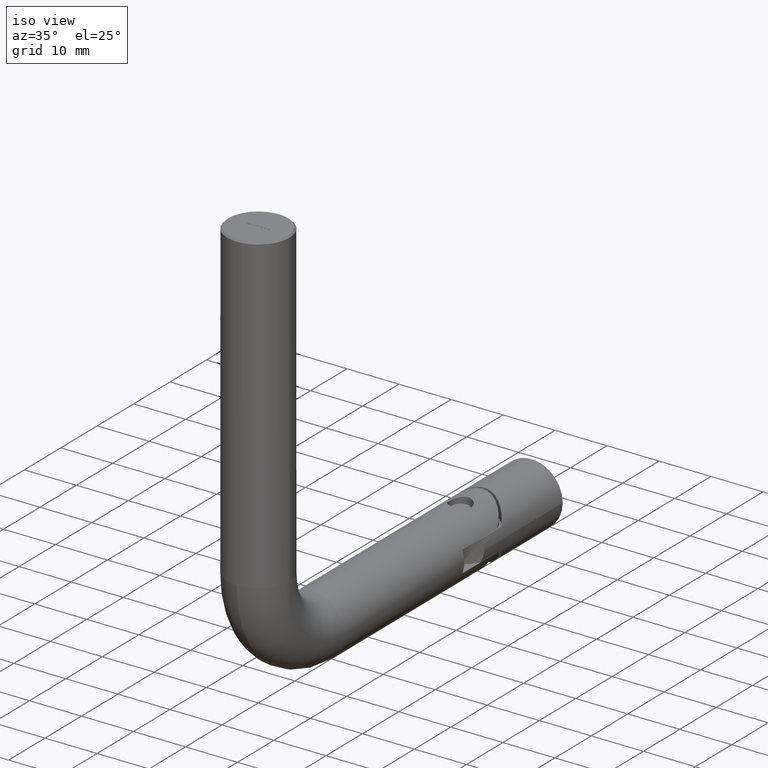
[diagram: clean part render]
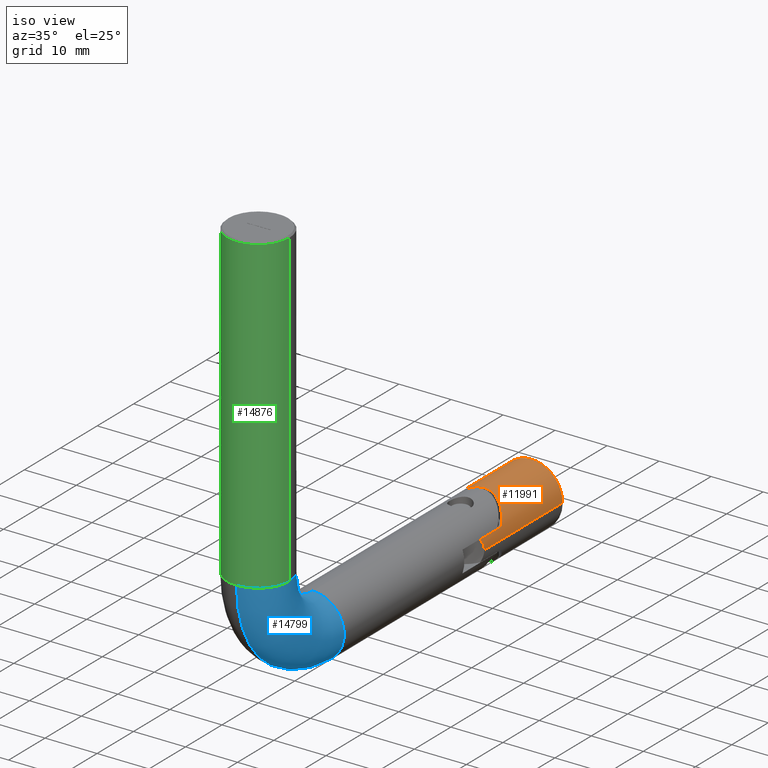
[diagram: same view with three faces highlighted in distinct colors, each labeled with its STEP entity id]
A machine part, iso view with three faces highlighted in distinct colors.
Their STEP definitions:

[orange] entity #11991 — the highlighted cylindrical surface (partial cylindrical patch) has radius 6 mm, axis along (0, -1, -0).
#56 = CARTESIAN_POINT ( 'NONE',  ( -4.581546204605388972, -1.411438803455867586, -3.885803305584377032 ) ) ;
#236 = CARTESIAN_POINT ( 'NONE',  ( -9.170508023194263639E-30, 12.87000000000002764, -6.000000000000016875 ) ) ;
#654 = CARTESIAN_POINT ( 'NONE',  ( -0.3617856438973633959, -8.650078377880598524, -5.991732771139056446 ) ) ;
#954 = ORIENTED_EDGE ( 'NONE', *, *, #3980, .F. ) ;
#1244 = CARTESIAN_POINT ( 'NONE',  ( -3.963077868403893866, -1.945530811190656850, -4.514436115276507344 ) ) ;
#1295 = CARTESIAN_POINT ( 'NONE',  ( -3.742934206814902076, -2.130908857969868286, -4.697949625296735654 ) ) ;
#1400 = CARTESIAN_POINT ( 'NONE',  ( -3.752979125615180767, -2.122581578878858455, 4.690117934618141859 ) ) ;
#1439 = CARTESIAN_POINT ( 'NONE',  ( 7.350550849581413190E-16, -8.629999999999991900, 6.000000000000000888 ) ) ;
#1462 = CARTESIAN_POINT ( 'NONE',  ( -3.289085795271207147, -2.500828911946892497, 5.026328002555670693 ) ) ;
#1593 = DIRECTION ( 'NONE',  ( 6.286235338479925563E-31, -1.000000000000000000, -1.503209982180670017E-46 ) ) ;
#1655 = CARTESIAN_POINT ( 'NONE',  ( 7.347880794884302160E-16, 12.87000000000002764, 6.000000000000000888 ) ) ;
#1815 = LINE ( 'NONE', #7816, #16562 ) ;
#1847 = CARTESIAN_POINT ( 'NONE',  ( -1.224466217722105066, -8.909489378976346075, 5.876187845408427535 ) ) ;
#1891 = CARTESIAN_POINT ( 'NONE',  ( -1.781184815116626976E-22, -8.629999999999993676, -6.000000000000000888 ) ) ;
#2585 = DIRECTION ( 'NONE',  ( 1.528418003865706344E-30, 0.000000000000000000, 1.000000000000000000 ) ) ;
#2608 = CARTESIAN_POINT ( 'NONE',  ( -5.882534994426070085, -0.2382795446612990531, -1.193528894263008899 ) ) ;
#2647 = DIRECTION ( 'NONE',  ( -1.528418003865706344E-30, 0.000000000000000000, -1.000000000000000000 ) ) ;
#2658 = CARTESIAN_POINT ( 'NONE',  ( -2.280411108807488318, -3.253266450332294557, 5.557713951213481884 ) ) ;
#2706 = DIRECTION ( 'NONE',  ( -6.286235338479925563E-31, 1.000000000000000000, -2.465190328815640818E-32 ) ) ;
#2758 = CARTESIAN_POINT ( 'NONE',  ( -4.384712526039704628, -1.583816360269787005, -4.106143652374580455 ) ) ;
#2768 = EDGE_CURVE ( 'NONE', #16377, #4177, #5489, .T. ) ;
#2814 = CARTESIAN_POINT ( 'NONE',  ( -4.946369160099275852, -1.088395250008953541, -3.409320326200408591 ) ) ;
#3022 = EDGE_CURVE ( 'NONE', #6144, #4657, #5279, .T. ) ;
#3386 = EDGE_CURVE ( 'NONE', #6085, #4028, #12502, .T. ) ;
#3427 = ORIENTED_EDGE ( 'NONE', *, *, #3022, .T. ) ;
#3606 = EDGE_CURVE ( 'NONE', #16377, #4657, #12597, .T. ) ;
#3635 = VERTEX_POINT ( 'NONE', #1655 ) ;
#3977 = ORIENTED_EDGE ( 'NONE', *, *, #3606, .F. ) ;
#3980 = EDGE_CURVE ( 'NONE', #13682, #3635, #4355, .T. ) ;
#4018 = CARTESIAN_POINT ( 'NONE',  ( -2.543575947902753764, -3.067485441664189683, 5.441644024836812754 ) ) ;
#4028 = VERTEX_POINT ( 'NONE', #1439 ) ;
#4075 = LINE ( 'NONE', #14901, #6977 ) ;
#4133 = CYLINDRICAL_SURFACE ( 'NONE', #17045, 6.000000000000016875 ) ;
#4177 = VERTEX_POINT ( 'NONE', #7551 ) ;
#4178 = CARTESIAN_POINT ( 'NONE',  ( -5.712651829901445488, -0.3943036353007446371, -1.841811353009712660 ) ) ;
#4317 = CARTESIAN_POINT ( 'NONE',  ( -2.000000000000001776, -13.13000000000000966, -5.656854249492395681 ) ) ;
#4355 = CIRCLE ( 'NONE', #12137, 6.000000000000016875 ) ;
#4486 = CARTESIAN_POINT ( 'NONE',  ( -1.392130197901999100, -8.974932780066394500, -5.846097255920565061 ) ) ;
#4657 = VERTEX_POINT ( 'NONE', #6232 ) ;
#4726 = CARTESIAN_POINT ( 'NONE',  ( -0.1821394757101623685, -8.629999999999995453, -6.000000000000000888 ) ) ;
#4744 = CARTESIAN_POINT ( 'NONE',  ( -2.150426531879441036E-30, 12.87000000000002764, -6.000000000000000888 ) ) ;
#4925 = CARTESIAN_POINT ( 'NONE',  ( -2.000000000000112799, -9.331562118716385967, 5.656854249492416997 ) ) ;
#5279 = B_SPLINE_CURVE_WITH_KNOTS ( 'NONE', 3,
 ( #1891, #4726, #654, #12677, #15383, #4486, #7282, #10068 ),
 .UNSPECIFIED., .F., .F.,
 ( 4, 2, 2, 4 ),
 ( 0.002178732642888937462, 0.002725283110957638262, 0.003271833579026339062, 0.004364934515163739794 ),
 .UNSPECIFIED. ) ;
#5419 = CARTESIAN_POINT ( 'NONE',  ( -5.555008041940381780, -0.5385159396421987932, 2.291497636623339051 ) ) ;
#5489 = B_SPLINE_CURVE_WITH_KNOTS ( 'NONE', 3,
 ( #8122, #17415, #10773, #10884, #10835, #1295, #1244, #2758, #56, #2814, #6816, #16049, #12203, #4178, #10663, #12255, #2608, #6606, #6761, #10720, #12042, #13497, #13446, #5419, #7947, #16165, #12148, #9405, #14848, #6709, #1400, #1462, #16210, #4018, #2658, #9465 ),
 .UNSPECIFIED., .F., .F.,
 ( 4, 2, 2, 2, 2, 2, 2, 2, 2, 2, 2, 2, 2, 2, 2, 2, 2, 4 ),
 ( 1.301042606982605321E-18, 0.001016921674962623177, 0.002033843349925245052, 0.003050765024887866928, 0.004067686699850489238, 0.005084608374813110246, 0.006101530049775732989, 0.006609990887257043493, 0.007118451724738353997, 0.008135373399700976740, 0.009152295074663597749, 0.01016921674962622049, 0.01118613842458884323, 0.01220306009955146424, 0.01321998177451408525, 0.01423690344947670799, 0.01525382512443933074, 0.01627074679940195001 ),
 .UNSPECIFIED. ) ;
#5700 = ORIENTED_EDGE ( 'NONE', *, *, #3386, .T. ) ;
#5979 = CARTESIAN_POINT ( 'NONE',  ( -0.7184394698673928215, -8.725440467147473456, 5.959475362595127557 ) ) ;
#6085 = VERTEX_POINT ( 'NONE', #4925 ) ;
#6144 = VERTEX_POINT ( 'NONE', #13439 ) ;
#6199 = ORIENTED_EDGE ( 'NONE', *, *, #2768, .T. ) ;
#6232 = CARTESIAN_POINT ( 'NONE',  ( -2.000000000000001776, -9.331562118716426824, -5.656854249492389464 ) ) ;
#6322 = LINE ( 'NONE', #236, #8190 ) ;
#6363 = CARTESIAN_POINT ( 'NONE',  ( 0.000000000000000000, 12.87000000000002764, 3.081487911019577365E-30 ) ) ;
#6606 = CARTESIAN_POINT ( 'NONE',  ( -5.969531893648558629, -0.1581532231148576328, -0.6925357023754528107 ) ) ;
#6709 = CARTESIAN_POINT ( 'NONE',  ( -3.975293530975994472, -1.935158645607629957, 4.503502654860914056 ) ) ;
#6761 = CARTESIAN_POINT ( 'NONE',  ( -5.999248220788542696, -0.1306939498043536152, -0.3547117963094750803 ) ) ;
#6816 = CARTESIAN_POINT ( 'NONE',  ( -5.114414597132688201, -0.9376357314501296836, -3.153217728018648636 ) ) ;
#6977 = VECTOR ( 'NONE', #2706, 1000.000000000000000 ) ;
#7122 = CARTESIAN_POINT ( 'NONE',  ( -1.852023483184906061, -9.239121921507676305, 5.709171848740540511 ) ) ;
#7179 = DIRECTION ( 'NONE',  ( 6.286235338479925563E-31, -1.000000000000000000, 2.465190328815640818E-32 ) ) ;
#7190 = CARTESIAN_POINT ( 'NONE',  ( 7.350550849581413190E-16, -8.629999999999991900, 6.000000000000000888 ) ) ;
#7282 = CARTESIAN_POINT ( 'NONE',  ( -1.704452939911144549, -9.146935333959648418, -5.761345914666666346 ) ) ;
#7551 = CARTESIAN_POINT ( 'NONE',  ( -2.000000000000001776, -3.428437881283580069, 5.656854249492389464 ) ) ;
#7816 = CARTESIAN_POINT ( 'NONE',  ( 7.347880794884249898E-16, 12.87000000000002764, 6.000000000000016875 ) ) ;
#7947 = CARTESIAN_POINT ( 'NONE',  ( -5.423960505446898672, -0.6579652600255414541, 2.584577807946759620 ) ) ;
#8107 = EDGE_CURVE ( 'NONE', #13682, #6144, #6322, .T. ) ;
#8122 = CARTESIAN_POINT ( 'NONE',  ( -2.000000000000001776, -3.428437881283580069, -5.656854249492389464 ) ) ;
#8190 = VECTOR ( 'NONE', #1593, 1000.000000000000000 ) ;
#9337 = DIRECTION ( 'NONE',  ( -6.286235338479925563E-31, 1.000000000000000000, 1.503209982180670017E-46 ) ) ;
#9405 = CARTESIAN_POINT ( 'NONE',  ( -4.587803455469829927, -1.405943696212462735, 3.878477351499727277 ) ) ;
#9465 = CARTESIAN_POINT ( 'NONE',  ( -2.000000000000001776, -3.428437881283580069, 5.656854249492389464 ) ) ;
#9908 = CARTESIAN_POINT ( 'NONE',  ( -0.1806006130240605523, -8.629999999999993676, 6.000000000000001776 ) ) ;
#10068 = CARTESIAN_POINT ( 'NONE',  ( -2.000000000000001776, -9.331562118716426824, -5.656854249492389464 ) ) ;
#10519 = CARTESIAN_POINT ( 'NONE',  ( -2.000000000000001776, -3.428437881283580069, -5.656854249492389464 ) ) ;
#10663 = CARTESIAN_POINT ( 'NONE',  ( -5.761247172812375084, -0.3497383057324661704, -1.684051163816296270 ) ) ;
#10720 = CARTESIAN_POINT ( 'NONE',  ( -6.000723816151055878, -0.1293318622469462331, 0.3288059539501582140 ) ) ;
#10773 = CARTESIAN_POINT ( 'NONE',  ( -2.542605740416459259, -3.068139149413771083, -5.442013910058804527 ) ) ;
#10835 = CARTESIAN_POINT ( 'NONE',  ( -3.283542601463433019, -2.505207078728183934, -5.029774860045494123 ) ) ;
#10884 = CARTESIAN_POINT ( 'NONE',  ( -3.044363521539125816, -2.694246194308094644, -5.178050800947596066 ) ) ;
#11213 = CARTESIAN_POINT ( 'NONE',  ( -0.8897784946480832291, -8.779141268229739836, 5.936092598951787203 ) ) ;
#11274 = CARTESIAN_POINT ( 'NONE',  ( -0.3649137017914586001, -8.650578893111360301, 5.991522332386529648 ) ) ;
#11676 = ORIENTED_EDGE ( 'NONE', *, *, #16151, .F. ) ;
#11743 = FACE_OUTER_BOUND ( 'NONE', #14686, .T. ) ;
#11792 = DIRECTION ( 'NONE',  ( 6.286235338479925563E-31, -1.000000000000000000, -1.503209982180670017E-46 ) ) ;
#11845 = CARTESIAN_POINT ( 'NONE',  ( 0.000000000000000000, 12.87000000000002764, 3.081487911019577365E-30 ) ) ;
#11937 = EDGE_CURVE ( 'NONE', #3635, #4028, #1815, .T. ) ;
#11991 = ADVANCED_FACE ( 'NONE', ( #11743 ), #4133, .T. ) ;
#12042 = CARTESIAN_POINT ( 'NONE',  ( -5.971326675247828675, -0.1564961354008681804, 0.6763518082564600187 ) ) ;
#12137 = AXIS2_PLACEMENT_3D ( 'NONE', #11845, #9337, #2585 ) ;
#12148 = CARTESIAN_POINT ( 'NONE',  ( -4.952794118636134613, -1.082658898110003376, 3.400052577611195392 ) ) ;
#12203 = CARTESIAN_POINT ( 'NONE',  ( -5.549716450024921421, -0.5433403604385905750, -2.303755039783948799 ) ) ;
#12207 = ORIENTED_EDGE ( 'NONE', *, *, #8107, .T. ) ;
#12255 = CARTESIAN_POINT ( 'NONE',  ( -5.846147438544883279, -0.2717645658995566649, -1.360351952762476779 ) ) ;
#12502 = B_SPLINE_CURVE_WITH_KNOTS ( 'NONE', 3,
 ( #15159, #7122, #13876, #15341, #1847, #11213, #5979, #11274, #9908, #7190 ),
 .UNSPECIFIED., .F., .F.,
 ( 4, 2, 2, 2, 4 ),
 ( 0.02086813287824276775, 0.02141368712936816271, 0.02195924138049355767, 0.02250479563161894916, 0.02305034988274434413 ),
 .UNSPECIFIED. ) ;
#12597 = LINE ( 'NONE', #4317, #16807 ) ;
#12677 = CARTESIAN_POINT ( 'NONE',  ( -0.7167165501273530248, -8.724915950807949017, -5.959703670455898994 ) ) ;
#13199 = DIRECTION ( 'NONE',  ( 6.286235338479925563E-31, -1.000000000000000000, -1.503209982180670017E-46 ) ) ;
#13439 = CARTESIAN_POINT ( 'NONE',  ( -1.781184815116626976E-22, -8.629999999999993676, -6.000000000000000888 ) ) ;
#13446 = CARTESIAN_POINT ( 'NONE',  ( -5.772953724843405077, -0.3391289616815184593, 1.667957150375651398 ) ) ;
#13497 = CARTESIAN_POINT ( 'NONE',  ( -5.857618955413417261, -0.2612316850687557146, 1.342569999754022803 ) ) ;
#13682 = VERTEX_POINT ( 'NONE', #4744 ) ;
#13876 = CARTESIAN_POINT ( 'NONE',  ( -1.700415533878682606, -9.150538201541113636, 5.756288854612837902 ) ) ;
#14298 = ORIENTED_EDGE ( 'NONE', *, *, #11937, .F. ) ;
#14686 = EDGE_LOOP ( 'NONE', ( #14298, #954, #12207, #3427, #3977, #6199, #11676, #5700 ) ) ;
#14848 = CARTESIAN_POINT ( 'NONE',  ( -4.392014078432160851, -1.577439822165445538, 4.098134594496933403 ) ) ;
#14901 = CARTESIAN_POINT ( 'NONE',  ( -2.000000000000001776, -13.13000000000000966, 5.656854249492386799 ) ) ;
#15159 = CARTESIAN_POINT ( 'NONE',  ( -2.000000000000112799, -9.331562118716385967, 5.656854249492416997 ) ) ;
#15341 = CARTESIAN_POINT ( 'NONE',  ( -1.387142725091126128, -8.985941697389247196, 5.839701141824178876 ) ) ;
#15383 = CARTESIAN_POINT ( 'NONE',  ( -0.8916959727603196439, -8.779816166573331415, -5.935789601692529338 ) ) ;
#16049 = CARTESIAN_POINT ( 'NONE',  ( -5.417563057375732960, -0.6637814509404951213, -2.598081836858240568 ) ) ;
#16151 = EDGE_CURVE ( 'NONE', #6085, #4177, #4075, .T. ) ;
#16165 = CARTESIAN_POINT ( 'NONE',  ( -5.123235225486805433, -0.9297025914007953640, 3.138765813868543475 ) ) ;
#16210 = CARTESIAN_POINT ( 'NONE',  ( -3.048047065601210193, -2.691431441535462987, 5.175971153481382814 ) ) ;
#16377 = VERTEX_POINT ( 'NONE', #10519 ) ;
#16562 = VECTOR ( 'NONE', #13199, 1000.000000000000000 ) ;
#16807 = VECTOR ( 'NONE', #7179, 1000.000000000000000 ) ;
#17045 = AXIS2_PLACEMENT_3D ( 'NONE', #6363, #11792, #2647 ) ;
#17415 = CARTESIAN_POINT ( 'NONE',  ( -2.280312844726844368, -3.253327835416824243, -5.557748692812366720 ) ) ;

[blue] entity #14799 — the highlighted toroidal blend (fillet) surface has major radius 15 mm and minor (blend) radius 6 mm.
#271 = ORIENTED_EDGE ( 'NONE', *, *, #2893, .F. ) ;
#405 = CARTESIAN_POINT ( 'NONE',  ( 6.000000000000000888, 0.000000000000000000, -60.00000000000000000 ) ) ;
#436 = CARTESIAN_POINT ( 'NONE',  ( 0.000000000000000000, 14.99999999999999822, -68.99999999999998579 ) ) ;
#669 = ORIENTED_EDGE ( 'NONE', *, *, #9371, .T. ) ;
#989 = CARTESIAN_POINT ( 'NONE',  ( 0.000000000000000000, 15.00000000000000000, -60.00000000000000000 ) ) ;
#1110 = DIRECTION ( 'NONE',  ( 0.000000000000000000, 0.000000000000000000, 1.000000000000000000 ) ) ;
#1464 = ORIENTED_EDGE ( 'NONE', *, *, #15084, .F. ) ;
#1496 = DIRECTION ( 'NONE',  ( 0.000000000000000000, 0.000000000000000000, -1.000000000000000000 ) ) ;
#1737 = DIRECTION ( 'NONE',  ( 1.000000000000000000, 0.000000000000000000, -0.000000000000000000 ) ) ;
#2407 = DIRECTION ( 'NONE',  ( 1.000000000000000000, 0.000000000000000000, 0.000000000000000000 ) ) ;
#2464 = EDGE_CURVE ( 'NONE', #8728, #17156, #10883, .T. ) ;
#2501 = AXIS2_PLACEMENT_3D ( 'NONE', #16491, #4429, #6826 ) ;
#2893 = EDGE_CURVE ( 'NONE', #3015, #15259, #15560, .T. ) ;
#3015 = VERTEX_POINT ( 'NONE', #405 ) ;
#3893 = DIRECTION ( 'NONE',  ( 0.000000000000000000, 0.000000000000000000, -1.000000000000000000 ) ) ;
#3969 = CARTESIAN_POINT ( 'NONE',  ( 0.000000000000000000, -6.000000000000001776, -60.00000000000000000 ) ) ;
#4429 = DIRECTION ( 'NONE',  ( 0.000000000000000000, -1.000000000000000000, -1.608122649676636601E-16 ) ) ;
#5327 = DIRECTION ( 'NONE',  ( 0.000000000000000000, 0.000000000000000000, 1.000000000000000000 ) ) ;
#5449 = ORIENTED_EDGE ( 'NONE', *, *, #5853, .F. ) ;
#5646 = ORIENTED_EDGE ( 'NONE', *, *, #2464, .T. ) ;
#5853 = EDGE_CURVE ( 'NONE', #16050, #3015, #15516, .T. ) ;
#6042 = CARTESIAN_POINT ( 'NONE',  ( -7.347880794884119736E-16, 6.000000000000000888, -60.00000000000000000 ) ) ;
#6361 = DIRECTION ( 'NONE',  ( 1.000000000000000000, 0.000000000000000000, -0.000000000000000000 ) ) ;
#6668 = DIRECTION ( 'NONE',  ( 1.000000000000000000, 0.000000000000000000, 0.000000000000000000 ) ) ;
#6826 = DIRECTION ( 'NONE',  ( 1.000000000000000000, 0.000000000000000000, 0.000000000000000000 ) ) ;
#8119 = AXIS2_PLACEMENT_3D ( 'NONE', #16459, #1737, #1496 ) ;
#8183 = DIRECTION ( 'NONE',  ( 0.000000000000000000, 0.000000000000000000, -1.000000000000000000 ) ) ;
#8728 = VERTEX_POINT ( 'NONE', #12544 ) ;
#9346 = TOROIDAL_SURFACE ( 'NONE', #15470, 15.00000000000000000, 6.000000000000000888 ) ;
#9371 = EDGE_CURVE ( 'NONE', #16050, #8728, #13256, .T. ) ;
#9976 = CIRCLE ( 'NONE', #8119, 8.999999999999994671 ) ;
#10883 = CIRCLE ( 'NONE', #2501, 6.000000000000000888 ) ;
#10900 = AXIS2_PLACEMENT_3D ( 'NONE', #13616, #16174, #8183 ) ;
#11710 = AXIS2_PLACEMENT_3D ( 'NONE', #17331, #1110, #2407 ) ;
#12537 = AXIS2_PLACEMENT_3D ( 'NONE', #16171, #5327, #6668 ) ;
#12544 = CARTESIAN_POINT ( 'NONE',  ( 7.347880794884113820E-16, 15.00000000000000178, -81.00000000000000000 ) ) ;
#13256 = CIRCLE ( 'NONE', #10900, 21.00000000000000355 ) ;
#13616 = CARTESIAN_POINT ( 'NONE',  ( 0.000000000000000000, 15.00000000000000000, -60.00000000000000000 ) ) ;
#14424 = FACE_OUTER_BOUND ( 'NONE', #16829, .T. ) ;
#14799 = ADVANCED_FACE ( 'NONE', ( #14424 ), #9346, .T. ) ;
#15084 = EDGE_CURVE ( 'NONE', #15259, #17156, #9976, .T. ) ;
#15259 = VERTEX_POINT ( 'NONE', #6042 ) ;
#15470 = AXIS2_PLACEMENT_3D ( 'NONE', #989, #6361, #3893 ) ;
#15516 = CIRCLE ( 'NONE', #11710, 6.000000000000000888 ) ;
#15560 = CIRCLE ( 'NONE', #12537, 6.000000000000000888 ) ;
#16050 = VERTEX_POINT ( 'NONE', #3969 ) ;
#16171 = CARTESIAN_POINT ( 'NONE',  ( 0.000000000000000000, 0.000000000000000000, -60.00000000000000000 ) ) ;
#16174 = DIRECTION ( 'NONE',  ( 1.000000000000000000, 0.000000000000000000, -0.000000000000000000 ) ) ;
#16459 = CARTESIAN_POINT ( 'NONE',  ( -7.347880794884120722E-16, 15.00000000000000000, -60.00000000000000000 ) ) ;
#16491 = CARTESIAN_POINT ( 'NONE',  ( 0.000000000000000000, 15.00000000000000000, -75.00000000000000000 ) ) ;
#16829 = EDGE_LOOP ( 'NONE', ( #5449, #669, #5646, #1464, #271 ) ) ;
#17156 = VERTEX_POINT ( 'NONE', #436 ) ;
#17331 = CARTESIAN_POINT ( 'NONE',  ( 0.000000000000000000, 0.000000000000000000, -60.00000000000000000 ) ) ;

[green] entity #14876 — the highlighted cylindrical surface (partial cylindrical patch) has radius 6 mm, axis along (0, 0, 1).
#83 = EDGE_CURVE ( 'NONE', #2765, #10797, #13053, .T. ) ;
#405 = CARTESIAN_POINT ( 'NONE',  ( 6.000000000000000888, 0.000000000000000000, -60.00000000000000000 ) ) ;
#1110 = DIRECTION ( 'NONE',  ( 0.000000000000000000, 0.000000000000000000, 1.000000000000000000 ) ) ;
#1162 = LINE ( 'NONE', #12595, #15933 ) ;
#1249 = CARTESIAN_POINT ( 'NONE',  ( -6.000000000000000888, 7.347880794884120722E-16, -60.00000000000000000 ) ) ;
#2407 = DIRECTION ( 'NONE',  ( 1.000000000000000000, 0.000000000000000000, 0.000000000000000000 ) ) ;
#2412 = DIRECTION ( 'NONE',  ( 1.000000000000000000, 0.000000000000000000, 0.000000000000000000 ) ) ;
#2765 = VERTEX_POINT ( 'NONE', #12101 ) ;
#3015 = VERTEX_POINT ( 'NONE', #405 ) ;
#3231 = EDGE_LOOP ( 'NONE', ( #5877, #5969, #13936, #8912, #13120 ) ) ;
#3511 = EDGE_CURVE ( 'NONE', #3015, #2765, #6052, .T. ) ;
#3969 = CARTESIAN_POINT ( 'NONE',  ( 0.000000000000000000, -6.000000000000001776, -60.00000000000000000 ) ) ;
#4292 = DIRECTION ( 'NONE',  ( 1.000000000000000000, 0.000000000000000000, 0.000000000000000000 ) ) ;
#4565 = AXIS2_PLACEMENT_3D ( 'NONE', #5578, #10993, #4292 ) ;
#4971 = EDGE_CURVE ( 'NONE', #12668, #16050, #11732, .T. ) ;
#5578 = CARTESIAN_POINT ( 'NONE',  ( 0.000000000000000000, 0.000000000000000000, -60.00000000000000000 ) ) ;
#5766 = CYLINDRICAL_SURFACE ( 'NONE', #17179, 6.000000000000000888 ) ;
#5853 = EDGE_CURVE ( 'NONE', #16050, #3015, #15516, .T. ) ;
#5877 = ORIENTED_EDGE ( 'NONE', *, *, #13301, .F. ) ;
#5969 = ORIENTED_EDGE ( 'NONE', *, *, #4971, .T. ) ;
#6052 = LINE ( 'NONE', #16695, #8995 ) ;
#6287 = DIRECTION ( 'NONE',  ( 1.000000000000000000, 0.000000000000000000, 0.000000000000000000 ) ) ;
#7676 = DIRECTION ( 'NONE',  ( 0.000000000000000000, 0.000000000000000000, -1.000000000000000000 ) ) ;
#8912 = ORIENTED_EDGE ( 'NONE', *, *, #3511, .T. ) ;
#8995 = VECTOR ( 'NONE', #14059, 1000.000000000000000 ) ;
#9171 = DIRECTION ( 'NONE',  ( -0.000000000000000000, -0.000000000000000000, 1.000000000000000000 ) ) ;
#10797 = VERTEX_POINT ( 'NONE', #17136 ) ;
#10993 = DIRECTION ( 'NONE',  ( 0.000000000000000000, 0.000000000000000000, 1.000000000000000000 ) ) ;
#11710 = AXIS2_PLACEMENT_3D ( 'NONE', #17331, #1110, #2407 ) ;
#11732 = CIRCLE ( 'NONE', #4565, 6.000000000000000888 ) ;
#12101 = CARTESIAN_POINT ( 'NONE',  ( 6.000000000000000888, 0.000000000000000000, -0.3000000000000016542 ) ) ;
#12301 = AXIS2_PLACEMENT_3D ( 'NONE', #14303, #7676, #6287 ) ;
#12595 = CARTESIAN_POINT ( 'NONE',  ( -6.000000000000000888, 7.347880794884120722E-16, -60.00000000000000000 ) ) ;
#12668 = VERTEX_POINT ( 'NONE', #1249 ) ;
#13053 = CIRCLE ( 'NONE', #12301, 6.000000000000000888 ) ;
#13120 = ORIENTED_EDGE ( 'NONE', *, *, #83, .T. ) ;
#13301 = EDGE_CURVE ( 'NONE', #12668, #10797, #1162, .T. ) ;
#13936 = ORIENTED_EDGE ( 'NONE', *, *, #5853, .T. ) ;
#14059 = DIRECTION ( 'NONE',  ( -0.000000000000000000, -0.000000000000000000, 1.000000000000000000 ) ) ;
#14303 = CARTESIAN_POINT ( 'NONE',  ( 0.000000000000000000, 0.000000000000000000, -0.3000000000000016542 ) ) ;
#14876 = ADVANCED_FACE ( 'NONE', ( #15051 ), #5766, .T. ) ;
#15051 = FACE_OUTER_BOUND ( 'NONE', #3231, .T. ) ;
#15516 = CIRCLE ( 'NONE', #11710, 6.000000000000000888 ) ;
#15933 = VECTOR ( 'NONE', #16526, 1000.000000000000000 ) ;
#16050 = VERTEX_POINT ( 'NONE', #3969 ) ;
#16526 = DIRECTION ( 'NONE',  ( -0.000000000000000000, -0.000000000000000000, 1.000000000000000000 ) ) ;
#16695 = CARTESIAN_POINT ( 'NONE',  ( 6.000000000000000888, 0.000000000000000000, -60.00000000000000000 ) ) ;
#16842 = CARTESIAN_POINT ( 'NONE',  ( 0.000000000000000000, 0.000000000000000000, -60.00000000000000000 ) ) ;
#17136 = CARTESIAN_POINT ( 'NONE',  ( -6.000000000000000888, 7.347880794884120722E-16, -0.3000000000000016542 ) ) ;
#17179 = AXIS2_PLACEMENT_3D ( 'NONE', #16842, #9171, #2412 ) ;
#17331 = CARTESIAN_POINT ( 'NONE',  ( 0.000000000000000000, 0.000000000000000000, -60.00000000000000000 ) ) ;